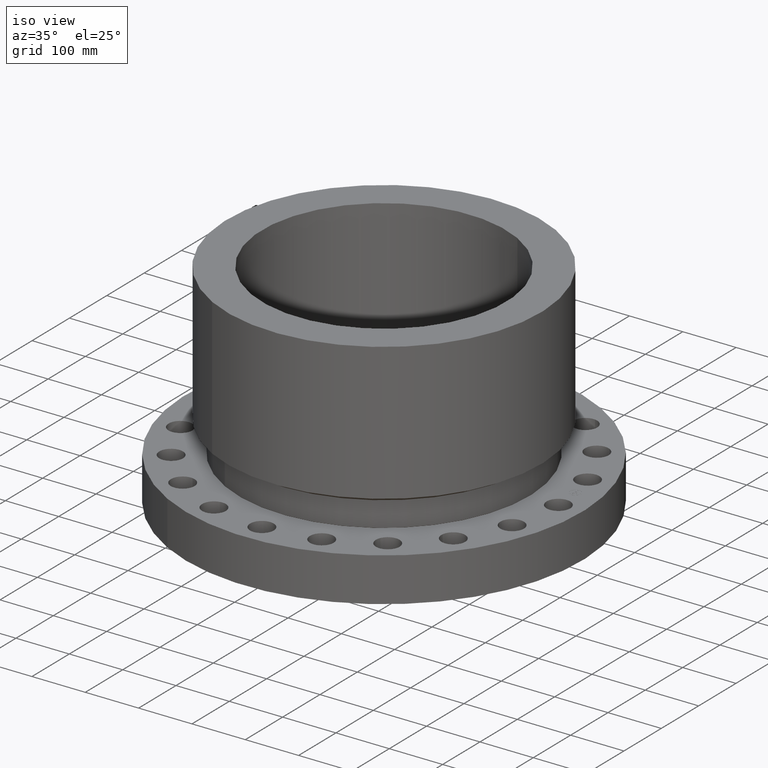
[diagram: clean part render]
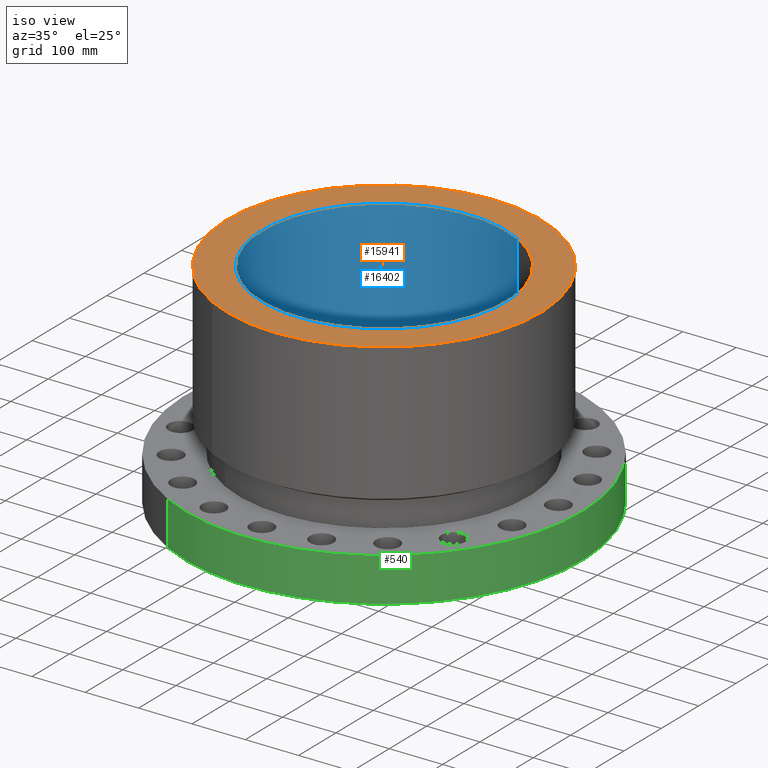
[diagram: same view with three faces highlighted in distinct colors, each labeled with its STEP entity id]
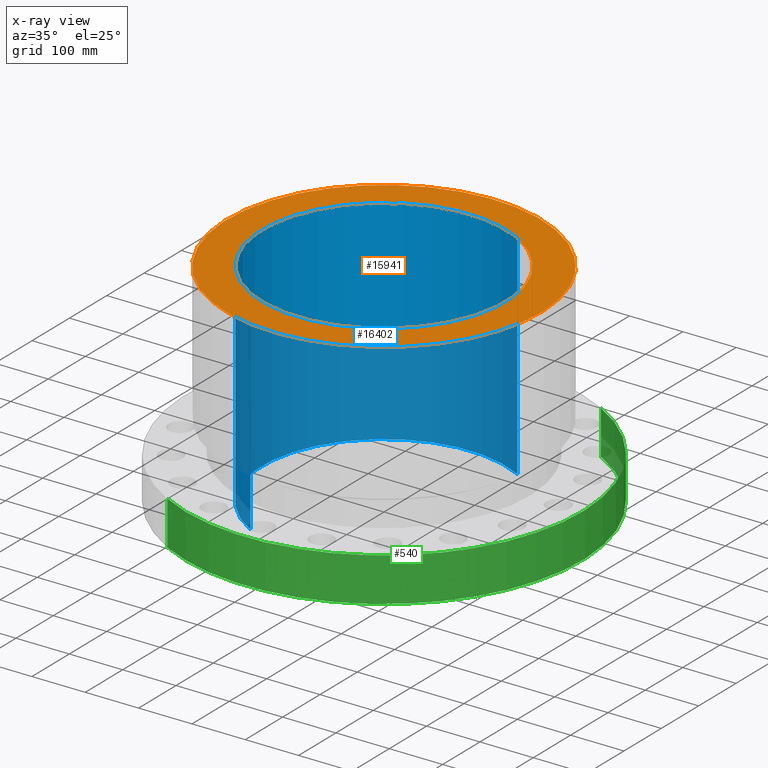
[diagram: x-ray of the same camera — body ghosted, the three highlighted faces saturated]
A machine part, iso view with three faces highlighted in distinct colors.
The next image is the same camera in x-ray (body ghosted, the three faces saturated) — at least one of them is partly hidden behind the body in this view.
Their STEP definitions:

[orange] entity #15941 — the highlighted planar face has unit normal (0, 0, -1).
#5137=AXIS2_PLACEMENT_3D('Circle Axis2P3D',#5135,#5136,$) ;
#5156=AXIS2_PLACEMENT_3D('Circle Axis2P3D',#5154,#5155,$) ;
#15917=AXIS2_PLACEMENT_3D('Plane Axis2P3D',#15914,#15915,#15916) ;
#15925=AXIS2_PLACEMENT_3D('Circle Axis2P3D',#15923,#15924,$) ;
#15934=AXIS2_PLACEMENT_3D('Circle Axis2P3D',#15932,#15933,$) ;
#5132=CARTESIAN_POINT('Vertex',(5.55893912014,10.1755698052,15.7500000001)) ;
#5135=CARTESIAN_POINT('Axis2P3D Location',(0.,0.,15.7500000001)) ;
#5139=CARTESIAN_POINT('Vertex',(-5.55893912014,-10.1755698052,15.7500000001)) ;
#5154=CARTESIAN_POINT('Axis2P3D Location',(0.,0.,15.7500000001)) ;
#15914=CARTESIAN_POINT('Axis2P3D Location',(0.,11.595,15.7500000001)) ;
#15923=CARTESIAN_POINT('Axis2P3D Location',(0.,0.,15.7500000001)) ;
#15927=CARTESIAN_POINT('Vertex',(-4.31482984746,-7.89824305704,15.7500000001)) ;
#15929=CARTESIAN_POINT('Vertex',(4.31482984746,7.89824305704,15.7500000001)) ;
#15932=CARTESIAN_POINT('Axis2P3D Location',(0.,0.,15.7500000001)) ;
#5136=DIRECTION('Axis2P3D Direction',(0.,0.,-0.0393700787402)) ;
#5155=DIRECTION('Axis2P3D Direction',(0.,0.,-0.0393700787402)) ;
#15915=DIRECTION('Axis2P3D Direction',(0.,0.,-0.0393700787402)) ;
#15916=DIRECTION('Axis2P3D XDirection',(0.0393700787402,0.,0.)) ;
#15924=DIRECTION('Axis2P3D Direction',(0.,0.,-0.0393700787402)) ;
#15933=DIRECTION('Axis2P3D Direction',(0.,0.,-0.0393700787402)) ;
#15920=ORIENTED_EDGE('',*,*,#5141,.F.) ;
#15921=ORIENTED_EDGE('',*,*,#5158,.F.) ;
#15938=ORIENTED_EDGE('',*,*,#15931,.T.) ;
#15939=ORIENTED_EDGE('',*,*,#15936,.T.) ;
#15940=FACE_BOUND('',#15937,.T.) ;
#15941=ADVANCED_FACE('PartBody',(#15922,#15940),#15918,.F.) ;
#5138=CIRCLE('generated circle',#5137,11.595) ;
#5157=CIRCLE('generated circle',#5156,11.595) ;
#15926=CIRCLE('generated circle',#15925,9.00000000004) ;
#15935=CIRCLE('generated circle',#15934,9.00000000004) ;
#5141=EDGE_CURVE('',#5133,#5140,#5138,.T.) ;
#5158=EDGE_CURVE('',#5140,#5133,#5157,.T.) ;
#15931=EDGE_CURVE('',#15928,#15930,#15926,.T.) ;
#15936=EDGE_CURVE('',#15930,#15928,#15935,.T.) ;
#15919=EDGE_LOOP('',(#15920,#15921)) ;
#15937=EDGE_LOOP('',(#15938,#15939)) ;
#15922=FACE_OUTER_BOUND('',#15919,.T.) ;
#15918=PLANE('',#15917) ;
#5133=VERTEX_POINT('',#5132) ;
#5140=VERTEX_POINT('',#5139) ;
#15928=VERTEX_POINT('',#15927) ;
#15930=VERTEX_POINT('',#15929) ;

[blue] entity #16402 — the highlighted cylindrical surface (partial cylindrical patch) has radius 228.6 mm, axis along (0, 0, -1).
#15925=AXIS2_PLACEMENT_3D('Circle Axis2P3D',#15923,#15924,$) ;
#16363=AXIS2_PLACEMENT_3D('Cylinder Axis2P3D',#16360,#16361,#16362) ;
#16393=AXIS2_PLACEMENT_3D('Circle Axis2P3D',#16391,#16392,$) ;
#15923=CARTESIAN_POINT('Axis2P3D Location',(0.,0.,15.7500000001)) ;
#15927=CARTESIAN_POINT('Vertex',(-4.31482984746,-7.89824305704,15.7500000001)) ;
#15929=CARTESIAN_POINT('Vertex',(4.31482984746,7.89824305704,15.7500000001)) ;
#16360=CARTESIAN_POINT('Axis2P3D Location',(0.,0.,7.75000000003)) ;
#16369=CARTESIAN_POINT('Vertex',(-4.31482984746,-7.89824305704,0.)) ;
#16371=CARTESIAN_POINT('Vertex',(4.31482984746,7.89824305704,0.)) ;
#16374=CARTESIAN_POINT('Line Origine',(-4.31482984746,-7.89824305704,7.87500000003)) ;
#16379=CARTESIAN_POINT('Line Origine',(4.31482984746,7.89824305704,7.87500000003)) ;
#16391=CARTESIAN_POINT('Axis2P3D Location',(0.,0.,0.)) ;
#15924=DIRECTION('Axis2P3D Direction',(0.,0.,-0.0393700787402)) ;
#16361=DIRECTION('Axis2P3D Direction',(0.,0.,-0.0393700787402)) ;
#16362=DIRECTION('Axis2P3D XDirection',(-0.0188750212049,-0.0345504945626,0.)) ;
#16375=DIRECTION('Vector Direction',(0.,0.,-0.0393700787402)) ;
#16380=DIRECTION('Vector Direction',(0.,0.,-0.0393700787402)) ;
#16392=DIRECTION('Axis2P3D Direction',(0.,0.,-0.0393700787402)) ;
#16376=VECTOR('Line Direction',#16375,0.0393700787402) ;
#16381=VECTOR('Line Direction',#16380,0.0393700787402) ;
#16397=ORIENTED_EDGE('',*,*,#16395,.F.) ;
#16398=ORIENTED_EDGE('',*,*,#16383,.F.) ;
#16399=ORIENTED_EDGE('',*,*,#15931,.F.) ;
#16400=ORIENTED_EDGE('',*,*,#16378,.T.) ;
#16402=ADVANCED_FACE('PartBody',(#16401),#16364,.F.) ;
#15926=CIRCLE('generated circle',#15925,9.00000000004) ;
#16394=CIRCLE('generated circle',#16393,9.00000000004) ;
#16364=CYLINDRICAL_SURFACE('generated cylinder',#16363,9.00000000004) ;
#15931=EDGE_CURVE('',#15928,#15930,#15926,.T.) ;
#16378=EDGE_CURVE('',#15928,#16370,#16377,.T.) ;
#16383=EDGE_CURVE('',#15930,#16372,#16382,.T.) ;
#16395=EDGE_CURVE('',#16372,#16370,#16394,.F.) ;
#16396=EDGE_LOOP('',(#16397,#16398,#16399,#16400)) ;
#16401=FACE_OUTER_BOUND('',#16396,.T.) ;
#16377=LINE('Line',#16374,#16376) ;
#16382=LINE('Line',#16379,#16381) ;
#15928=VERTEX_POINT('',#15927) ;
#15930=VERTEX_POINT('',#15929) ;
#16370=VERTEX_POINT('',#16369) ;
#16372=VERTEX_POINT('',#16371) ;

[green] entity #540 — the highlighted cylindrical surface (partial cylindrical patch) has radius 371.475 mm, axis along (0, 0, -1).
#99=AXIS2_PLACEMENT_3D('Circle Axis2P3D',#97,#98,$) ;
#501=AXIS2_PLACEMENT_3D('Cylinder Axis2P3D',#498,#499,#500) ;
#531=AXIS2_PLACEMENT_3D('Circle Axis2P3D',#529,#530,$) ;
#97=CARTESIAN_POINT('Axis2P3D Location',(0.,0.,3.25000000001)) ;
#101=CARTESIAN_POINT('Vertex',(7.01159850211,12.8346449677,3.25000000001)) ;
#103=CARTESIAN_POINT('Vertex',(-7.01159850211,-12.8346449677,3.25000000001)) ;
#498=CARTESIAN_POINT('Axis2P3D Location',(0.,0.,7.75000000003)) ;
#507=CARTESIAN_POINT('Vertex',(-7.01159850211,-12.8346449677,3.35689481461E-015)) ;
#509=CARTESIAN_POINT('Vertex',(7.01159850211,12.8346449677,3.35689481461E-015)) ;
#512=CARTESIAN_POINT('Line Origine',(-7.01159850211,-12.8346449677,1.62500000001)) ;
#517=CARTESIAN_POINT('Line Origine',(7.01159850211,12.8346449677,1.62500000001)) ;
#529=CARTESIAN_POINT('Axis2P3D Location',(0.,0.,3.35689481461E-015)) ;
#98=DIRECTION('Axis2P3D Direction',(0.,0.,-0.0393700787402)) ;
#499=DIRECTION('Axis2P3D Direction',(0.,0.,-0.0393700787402)) ;
#500=DIRECTION('Axis2P3D XDirection',(0.0188750212049,0.0345504945626,0.)) ;
#513=DIRECTION('Vector Direction',(0.,0.,-0.0393700787402)) ;
#518=DIRECTION('Vector Direction',(0.,0.,-0.0393700787402)) ;
#530=DIRECTION('Axis2P3D Direction',(0.,0.,-0.0393700787402)) ;
#514=VECTOR('Line Direction',#513,0.0393700787402) ;
#519=VECTOR('Line Direction',#518,0.0393700787402) ;
#535=ORIENTED_EDGE('',*,*,#533,.F.) ;
#536=ORIENTED_EDGE('',*,*,#521,.T.) ;
#537=ORIENTED_EDGE('',*,*,#105,.T.) ;
#538=ORIENTED_EDGE('',*,*,#516,.F.) ;
#540=ADVANCED_FACE('PartBody',(#539),#502,.T.) ;
#100=CIRCLE('generated circle',#99,14.6250000001) ;
#532=CIRCLE('generated circle',#531,14.6250000001) ;
#502=CYLINDRICAL_SURFACE('generated cylinder',#501,14.6250000001) ;
#105=EDGE_CURVE('',#102,#104,#100,.T.) ;
#516=EDGE_CURVE('',#508,#104,#515,.F.) ;
#521=EDGE_CURVE('',#510,#102,#520,.F.) ;
#533=EDGE_CURVE('',#510,#508,#532,.T.) ;
#534=EDGE_LOOP('',(#535,#536,#537,#538)) ;
#539=FACE_OUTER_BOUND('',#534,.T.) ;
#515=LINE('Line',#512,#514) ;
#520=LINE('Line',#517,#519) ;
#102=VERTEX_POINT('',#101) ;
#104=VERTEX_POINT('',#103) ;
#508=VERTEX_POINT('',#507) ;
#510=VERTEX_POINT('',#509) ;